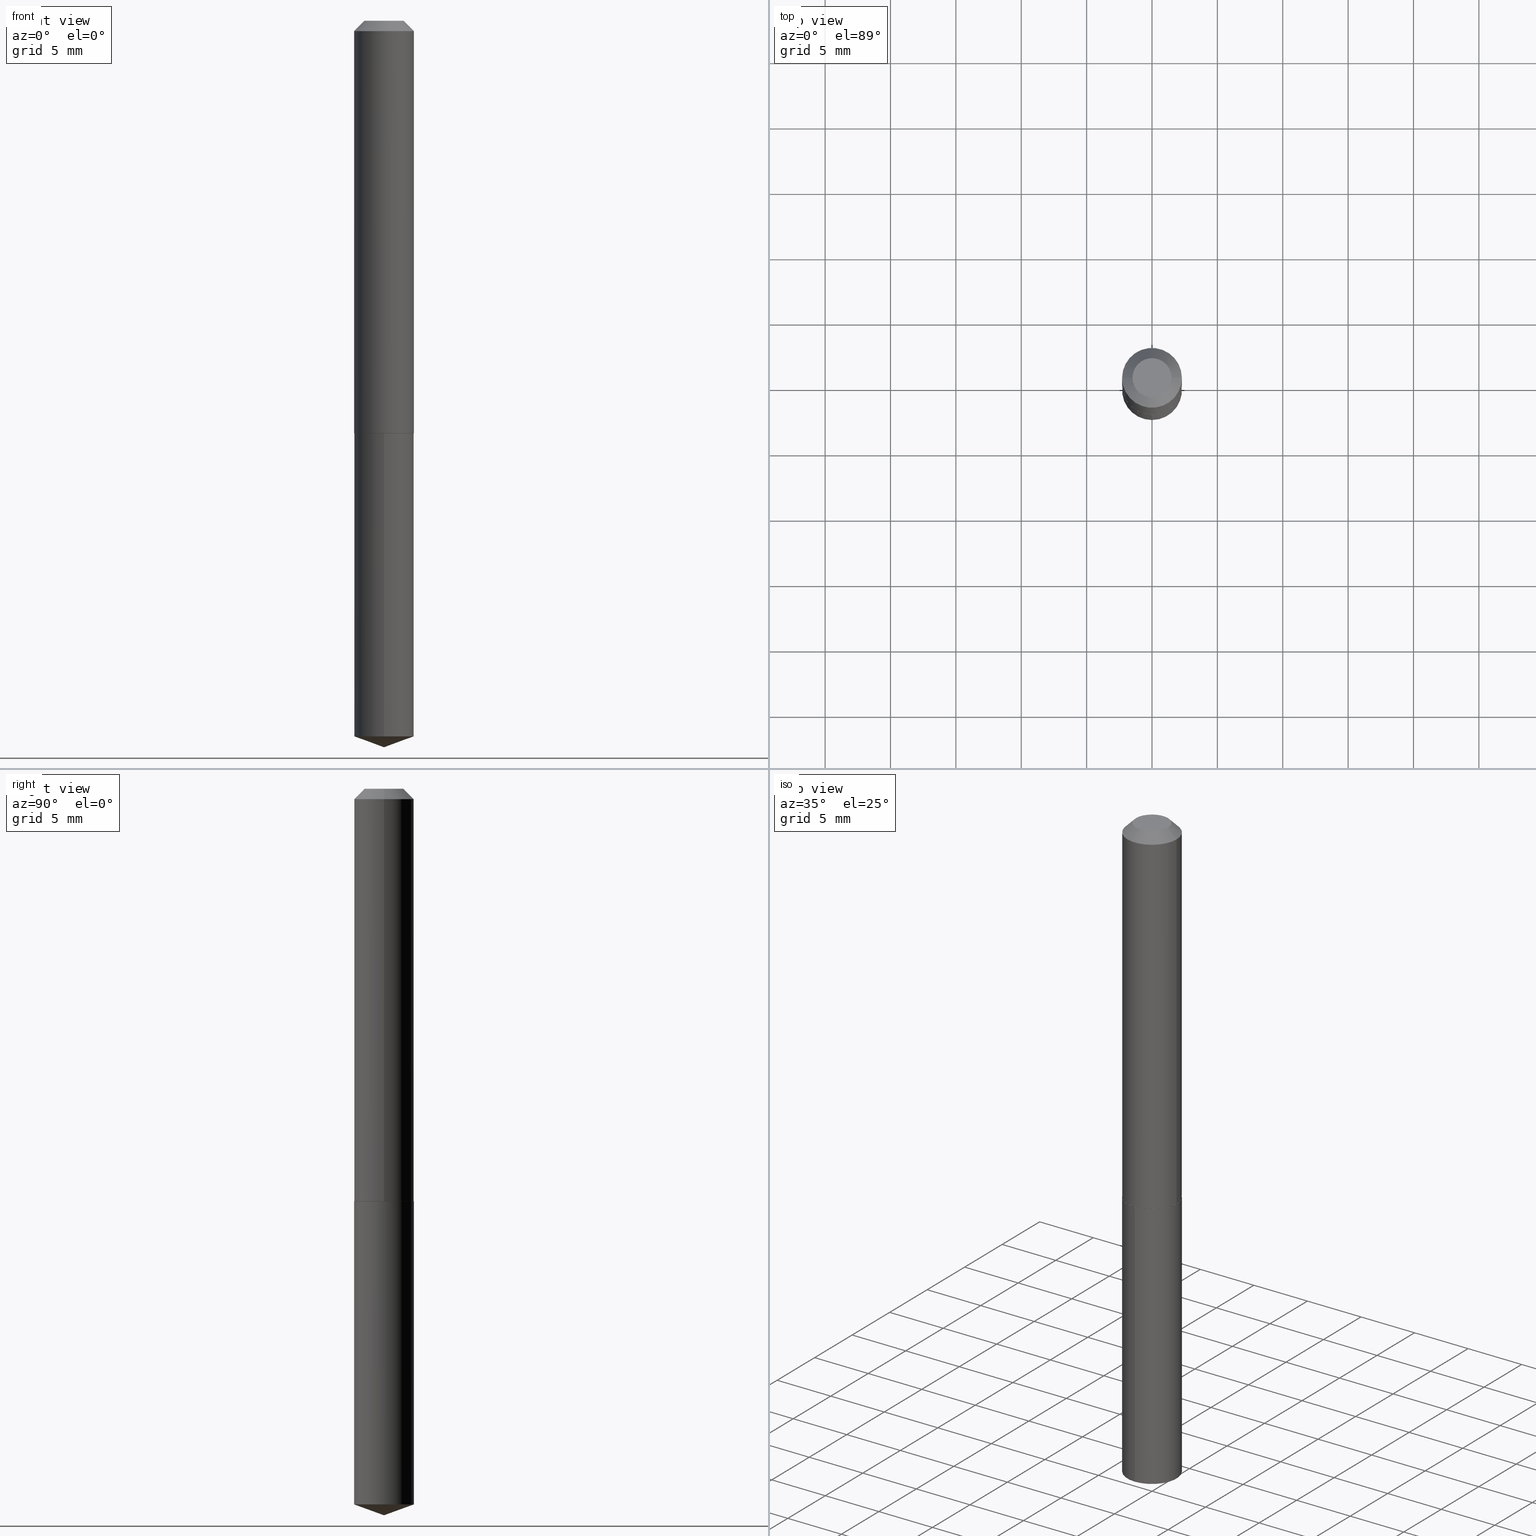
[diagram: canonical four-view strip — front | top / right | iso, engineering-drawing reading convention]
A machine part, canonical four-view strip (front | top / right | iso — engineering-drawing reading convention). The complete STEP part file that produces these views, byte-faithful:
ISO-10303-21;
HEADER;
FILE_DESCRIPTION (( 'STEP AP203' ),
    '1' );
FILE_NAME ('56015.STEP',
    '2024-04-22T19:42:29',
    ( '' ),
    ( '' ),
    'SwSTEP 2.0',
    'SolidWorks 2023',
    '' );
FILE_SCHEMA (( 'CONFIG_CONTROL_DESIGN' ));
ENDSEC;

DATA;
#1 = AXIS2_PLACEMENT_3D ( 'NONE', #164, #283, #17 ) ;
#2 = AXIS2_PLACEMENT_3D ( 'NONE', #354, #201, #176 ) ;
#3 = CARTESIAN_POINT ( 'NONE',  ( 2.994835545909338206E-48, -4.275831445896990567E-34, -1.224646799147357958E-19 ) ) ;
#4 = DIRECTION ( 'NONE',  ( 2.445564806942937386E-29, -3.491343860293950620E-15, -1.000000000000000000 ) ) ;
#5 = CARTESIAN_POINT ( 'NONE',  ( 0.08999999999999999667, -7.375754328306130652E-16, -0.03125000000000020817 ) ) ;
#6 = PERSON_AND_ORGANIZATION ( #262, #217 ) ;
#7 = EDGE_LOOP ( 'NONE', ( #226, #366, #43, #367 ) ) ;
#8 = MANIFOLD_SOLID_BREP ( 'Body-Move/Copy2[1]', #146 ) ;
#9 = EDGE_CURVE ( 'NONE', #371, #142, #71, .T. ) ;
#10 = CARTESIAN_POINT ( 'NONE',  ( 3.037272257281940407E-29, -4.336419822843187625E-15, -1.242000000000000215 ) ) ;
#11 = AXIS2_PLACEMENT_3D ( 'NONE', #107, #116, #170 ) ;
#12 = CC_DESIGN_PERSON_AND_ORGANIZATION_ASSIGNMENT ( #6, #326, ( #251 ) ) ;
#13 = ORIENTED_EDGE ( 'NONE', *, *, #9, .T. ) ;
#14 = FACE_OUTER_BOUND ( 'NONE', #207, .T. ) ;
#15 = DIRECTION ( 'NONE',  ( -2.445564806942937386E-29, 3.491343860293950620E-15, 1.000000000000000000 ) ) ;
#16 = CARTESIAN_POINT ( 'NONE',  ( 5.349434453304541823E-29, -7.637656328587767219E-15, -2.187500000000000000 ) ) ;
#17 = DIRECTION ( 'NONE',  ( -6.982962677686267499E-15, -1.000000000000000000, 3.475157955500694970E-15 ) ) ;
#18 = CARTESIAN_POINT ( 'NONE',  ( -0.09000000000000006606, 6.394884621840906367E-16, -4.427041581229418623E-30 ) ) ;
#19 = PRODUCT_DEFINITION_SHAPE ( 'NONE', 'NONE',  #251 ) ;
#20 = VERTEX_POINT ( 'NONE', #245 ) ;
#21 = VECTOR ( 'NONE', #204, 39.37007874015748143 ) ;
#22 = AXIS2_PLACEMENT_3D ( 'NONE', #110, #51, #282 ) ;
#23 = MANIFOLD_SOLID_BREP ( 'Body-Move/Copy2[2]', #323 ) ;
#24 = ORIENTED_EDGE ( 'NONE', *, *, #309, .F. ) ;
#25 = CARTESIAN_POINT ( 'NONE',  ( -6.284666409917335934E-16, -0.09000000000000432654, -1.242499999999999938 ) ) ;
#26 = DIRECTION ( 'NONE',  ( -6.982962677686265133E-15, -1.000000000000000000, 3.035386659626959132E-15 ) ) ;
#27 = ORIENTED_EDGE ( 'NONE', *, *, #153, .T. ) ;
#28 = LINE ( 'NONE', #353, #255 ) ;
#29 = EDGE_CURVE ( 'NONE', #142, #371, #361, .T. ) ;
#30 = ORIENTED_EDGE ( 'NONE', *, *, #153, .F. ) ;
#31 = PERSON_AND_ORGANIZATION_ROLE ( 'creator' ) ;
#32 = DIRECTION ( 'NONE',  ( 0.000000000000000000, 0.000000000000000000, 1.000000000000000000 ) ) ;
#33 =( LENGTH_UNIT ( ) NAMED_UNIT ( * ) SI_UNIT ( $, .METRE. ) );
#34 = DIRECTION ( 'NONE',  ( 1.000000000000000000, -6.982962677686266711E-15, 0.000000000000000000 ) ) ;
#35 = DATE_AND_TIME ( #304, #316 ) ;
#36 = ORIENTED_EDGE ( 'NONE', *, *, #149, .T. ) ;
#37 = VECTOR ( 'NONE', #341, 39.37007874015748143 ) ;
#38 = PERSON_AND_ORGANIZATION ( #262, #217 ) ;
#39 = VECTOR ( 'NONE', #127, 39.37007874015748854 ) ;
#40 = CARTESIAN_POINT ( 'NONE',  ( 3.038494991685032087E-29, -4.338165563512608340E-15, -1.242499999999999938 ) ) ;
#41 = ORIENTED_EDGE ( 'NONE', *, *, #9, .F. ) ;
#42 = CARTESIAN_POINT ( 'NONE',  ( 7.642090019328602662E-31, -1.091087918388490267E-16, -0.03125000000000020817 ) ) ;
#43 = ORIENTED_EDGE ( 'NONE', *, *, #78, .T. ) ;
#44 = DIRECTION ( 'NONE',  ( -6.982962677686265133E-15, -1.000000000000000000, 3.035386659626959132E-15 ) ) ;
#45 = EDGE_LOOP ( 'NONE', ( #178, #273, #246 ) ) ;
#46 = ORIENTED_EDGE ( 'NONE', *, *, #301, .T. ) ;
#47 = ORIENTED_EDGE ( 'NONE', *, *, #144, .F. ) ;
#48 = APPLICATION_CONTEXT ( 'configuration controlled 3d designs of mechanical parts and assemblies' ) ;
#49 = PLANE ( 'NONE',  #132 ) ;
#50 = DATE_AND_TIME ( #296, #80 ) ;
#51 = DIRECTION ( 'NONE',  ( -2.445468806185136597E-29, 3.491481338843145583E-15, 1.000000000000000000 ) ) ;
#52 = ORIENTED_EDGE ( 'NONE', *, *, #78, .F. ) ;
#53 = AXIS2_PLACEMENT_3D ( 'NONE', #129, #308, #122 ) ;
#54 = DIRECTION ( 'NONE',  ( -1.000000000000000000, 6.982962677686265922E-15, -4.876176775795935793E-29 ) ) ;
#55 = PERSON_AND_ORGANIZATION ( #262, #217 ) ;
#56 = ORIENTED_EDGE ( 'NONE', *, *, #295, .F. ) ;
#57 = ORIENTED_EDGE ( 'NONE', *, *, #92, .T. ) ;
#58 = DIRECTION ( 'NONE',  ( -2.445468806185136597E-29, 3.491481338843145583E-15, 1.000000000000000000 ) ) ;
#59 = APPROVAL_DATE_TIME ( #50, #87 ) ;
#60 = DIRECTION ( 'NONE',  ( 1.000000000000000000, -6.982962677686266711E-15, 0.000000000000000000 ) ) ;
#61 = ADVANCED_FACE ( 'NONE', ( #270 ), #238, .T. ) ;
#62 = PERSON_AND_ORGANIZATION_ROLE ( 'design_owner' ) ;
#63 = VECTOR ( 'NONE', #225, 39.37007874015748143 ) ;
#64 = AXIS2_PLACEMENT_3D ( 'NONE', #42, #280, #60 ) ;
#65 = DIRECTION ( 'NONE',  ( -6.982962677686265133E-15, -1.000000000000000000, 3.035386659626959132E-15 ) ) ;
#66 = DATE_TIME_ROLE ( 'classification_date' ) ;
#67 = EDGE_CURVE ( 'NONE', #268, #20, #344, .T. ) ;
#68 = EDGE_LOOP ( 'NONE', ( #77, #36 ) ) ;
#69 = PERSON_AND_ORGANIZATION_ROLE ( 'classification_officer' ) ;
#70 = DIRECTION ( 'NONE',  ( 1.000000000000000000, -6.982962677686265922E-15, 0.000000000000000000 ) ) ;
#71 = CIRCLE ( 'NONE', #152, 0.08950000000000016276 ) ;
#72 =( GEOMETRIC_REPRESENTATION_CONTEXT ( 3 ) GLOBAL_UNCERTAINTY_ASSIGNED_CONTEXT ( ( #272 ) ) GLOBAL_UNIT_ASSIGNED_CONTEXT ( ( #358, #234, #237 ) ) REPRESENTATION_CONTEXT ( 'NONE', 'WORKASPACE' ) );
#73 = VERTEX_POINT ( 'NONE', #220 ) ;
#74 = DIRECTION ( 'NONE',  ( -2.445564806942937386E-29, 3.491343860293951015E-15, 1.000000000000000000 ) ) ;
#75 = APPROVAL_STATUS ( 'not_yet_approved' ) ;
#76 = CYLINDRICAL_SURFACE ( 'NONE', #279, 0.08999999999999999667 ) ;
#77 = ORIENTED_EDGE ( 'NONE', *, *, #82, .T. ) ;
#78 = EDGE_CURVE ( 'NONE', #20, #223, #306, .T. ) ;
#79 = COORDINATED_UNIVERSAL_TIME_OFFSET ( 5, 0, .BEHIND. ) ;
#80 = LOCAL_TIME ( 15, 42, 29.00000000000000000, #322 ) ;
#81 = DIRECTION ( 'NONE',  ( -2.445564806942937386E-29, 3.491343860293951015E-15, 1.000000000000000000 ) ) ;
#82 = EDGE_CURVE ( 'NONE', #223, #376, #242, .T. ) ;
#83 = CARTESIAN_POINT ( 'NONE',  ( 3.038494991685032647E-29, -4.338165563512609129E-15, -1.242500000000000160 ) ) ;
#84 = VERTEX_POINT ( 'NONE', #5 ) ;
#85 = CIRCLE ( 'NONE', #297, 0.09000000000000013545 ) ;
#86 = AXIS2_PLACEMENT_3D ( 'NONE', #374, #100, #224 ) ;
#87 = APPROVAL ( #300, 'UNSPECIFIED' ) ;
#88 = COORDINATED_UNIVERSAL_TIME_OFFSET ( 5, 0, .BEHIND. ) ;
#89 = DIRECTION ( 'NONE',  ( -0.7071067811865451302, 2.468850131082231817E-15, -0.7071067811865499042 ) ) ;
#90 = DIRECTION ( 'NONE',  ( 6.982962677686265922E-15, 1.000000000000000000, -3.491343860293950620E-15 ) ) ;
#91 = CALENDAR_DATE ( 2024, 22, 4 ) ;
#92 = EDGE_CURVE ( 'NONE', #73, #184, #85, .T. ) ;
#93 = SECURITY_CLASSIFICATION_LEVEL ( 'unclassified' ) ;
#94 = DIRECTION ( 'NONE',  ( -2.445468806185136597E-29, 3.491481338843145583E-15, 1.000000000000000000 ) ) ;
#95 = ORIENTED_EDGE ( 'NONE', *, *, #256, .T. ) ;
#96 = DIRECTION ( 'NONE',  ( -6.982962677686265133E-15, -1.000000000000000000, 3.035386659626959132E-15 ) ) ;
#97 = CARTESIAN_POINT ( 'NONE',  ( -0.08950000000000016276, -3.699580587833207302E-15, -1.242499999999999938 ) ) ;
#98 = APPROVAL_PERSON_ORGANIZATION ( #38, #232, #274 ) ;
#99 = FACE_OUTER_BOUND ( 'NONE', #45, .T. ) ;
#100 = DIRECTION ( 'NONE',  ( -2.445468806185136597E-29, 3.491481338843145583E-15, 1.000000000000000000 ) ) ;
#101 = CARTESIAN_POINT ( 'NONE',  ( 3.038494991685032647E-29, -4.338165563512609129E-15, -1.242500000000000160 ) ) ;
#102 = ORIENTED_EDGE ( 'NONE', *, *, #92, .F. ) ;
#103 = DIRECTION ( 'NONE',  ( -2.445564806942937386E-29, 3.491343860293951015E-15, 1.000000000000000000 ) ) ;
#104 = CARTESIAN_POINT ( 'NONE',  ( 0.05874999999999999667, -5.648039345036820564E-16, -1.224646799113270924E-19 ) ) ;
#105 = ORIENTED_EDGE ( 'NONE', *, *, #337, .F. ) ;
#106 = EDGE_LOOP ( 'NONE', ( #95, #114, #284, #52 ) ) ;
#107 = CARTESIAN_POINT ( 'NONE',  ( 5.269443582633451570E-29, -7.523118439644238863E-15, -2.154742678916042209 ) ) ;
#108 = ADVANCED_FACE ( 'NONE', ( #214 ), #49, .F. ) ;
#109 = DIRECTION ( 'NONE',  ( -6.982962677686265133E-15, -1.000000000000000000, 3.035386659626959132E-15 ) ) ;
#110 = CARTESIAN_POINT ( 'NONE',  ( 0.000000000000000000, 0.000000000000000000, 0.000000000000000000 ) ) ;
#111 = CARTESIAN_POINT ( 'NONE',  ( 7.642090019328602662E-31, -1.091087918388490267E-16, -0.03125000000000020817 ) ) ;
#112 = CARTESIAN_POINT ( 'NONE',  ( 3.038494991685032647E-29, -4.338165563512609129E-15, -1.242500000000000160 ) ) ;
#113 = AXIS2_PLACEMENT_3D ( 'NONE', #101, #74, #65 ) ;
#114 = ORIENTED_EDGE ( 'NONE', *, *, #218, .T. ) ;
#115 = AXIS2_PLACEMENT_3D ( 'NONE', #117, #4, #90 ) ;
#116 = DIRECTION ( 'NONE',  ( -2.445564806942937386E-29, 3.491343860293951015E-15, 1.000000000000000000 ) ) ;
#117 = CARTESIAN_POINT ( 'NONE',  ( 3.038494991685032647E-29, -4.338165563512609129E-15, -1.242500000000000160 ) ) ;
#118 = CC_DESIGN_PERSON_AND_ORGANIZATION_ASSIGNMENT ( #161, #362, ( #191 ) ) ;
#119 = AXIS2_PLACEMENT_3D ( 'NONE', #111, #135, #252 ) ;
#120 = AXIS2_PLACEMENT_3D ( 'NONE', #298, #32, #172 ) ;
#121 = LENGTH_MEASURE_WITH_UNIT ( LENGTH_MEASURE( 0.02539999999999999897 ), #33 );
#122 = DIRECTION ( 'NONE',  ( 1.000000000000000000, -6.982962677686266711E-15, 4.876176775795935793E-29 ) ) ;
#123 = FACE_OUTER_BOUND ( 'NONE', #68, .T. ) ;
#124 = ORIENTED_EDGE ( 'NONE', *, *, #256, .F. ) ;
#125 = CC_DESIGN_DATE_AND_TIME_ASSIGNMENT ( #373, #66, ( #330 ) ) ;
#126 = VERTEX_POINT ( 'NONE', #261 ) ;
#127 = DIRECTION ( 'NONE',  ( -6.561838499445207162E-15, -0.9396926207859082059, 0.3420201433256689350 ) ) ;
#128 = CARTESIAN_POINT ( 'NONE',  ( 5.269443582633451570E-29, -7.523118439644238863E-15, -2.154742678916042209 ) ) ;
#129 = CARTESIAN_POINT ( 'NONE',  ( 0.000000000000000000, 0.000000000000000000, 0.000000000000000000 ) ) ;
#130 = EDGE_CURVE ( 'NONE', #319, #289, #315, .T. ) ;
#131 = LINE ( 'NONE', #16, #39 ) ;
#132 = AXIS2_PLACEMENT_3D ( 'NONE', #324, #328, #54 ) ;
#133 = CC_DESIGN_APPROVAL ( #232, ( #330 ) ) ;
#134 = AXIS2_PLACEMENT_3D ( 'NONE', #247, #94, #271 ) ;
#135 = DIRECTION ( 'NONE',  ( 2.445468806185136597E-29, -3.491481338843145583E-15, -1.000000000000000000 ) ) ;
#136 = EDGE_CURVE ( 'NONE', #142, #73, #158, .T. ) ;
#137 = FACE_OUTER_BOUND ( 'NONE', #303, .T. ) ;
#138 = CIRCLE ( 'NONE', #113, 0.08999999999999999667 ) ;
#139 = CC_DESIGN_APPROVAL ( #189, ( #251 ) ) ;
#140 = ORIENTED_EDGE ( 'NONE', *, *, #288, .T. ) ;
#141 = CARTESIAN_POINT ( 'NONE',  ( 0.09000000000000013545, -4.964886463834952576E-15, -1.242000000000000215 ) ) ;
#142 = VERTEX_POINT ( 'NONE', #97 ) ;
#143 = PLANE ( 'NONE',  #173 ) ;
#144 = EDGE_CURVE ( 'NONE', #371, #184, #222, .T. ) ;
#145 = ORIENTED_EDGE ( 'NONE', *, *, #203, .F. ) ;
#146 = CLOSED_SHELL ( 'NONE', ( #343, #213, #325, #196, #377 ) ) ;
#147 = PERSON_AND_ORGANIZATION ( #262, #217 ) ;
#148 = EDGE_LOOP ( 'NONE', ( #13, #258, #105, #47 ) ) ;
#149 = EDGE_CURVE ( 'NONE', #376, #223, #138, .T. ) ;
#150 = APPLICATION_PROTOCOL_DEFINITION ( 'international standard', 'config_control_design', 1994, #241 ) ;
#151 = DIRECTION ( 'NONE',  ( 6.676917655467975229E-15, 0.9396926207859106484, 0.3420201433256624401 ) ) ;
#152 = AXIS2_PLACEMENT_3D ( 'NONE', #40, #276, #197 ) ;
#153 = EDGE_CURVE ( 'NONE', #319, #84, #192, .T. ) ;
#154 = ORIENTED_EDGE ( 'NONE', *, *, #136, .F. ) ;
#155 = AXIS2_PLACEMENT_3D ( 'NONE', #275, #162, #70 ) ;
#156 = APPROVAL_DATE_TIME ( #35, #232 ) ;
#157 = CC_DESIGN_PERSON_AND_ORGANIZATION_ASSIGNMENT ( #259, #31, ( #191 ) ) ;
#158 = LINE ( 'NONE', #372, #63 ) ;
#159 = CALENDAR_DATE ( 2024, 22, 4 ) ;
#160 = AXIS2_PLACEMENT_3D ( 'NONE', #318, #351, #321 ) ;
#161 = PERSON_AND_ORGANIZATION ( #262, #217 ) ;
#162 = DIRECTION ( 'NONE',  ( -2.445468806185136597E-29, 3.491481338843145583E-15, 1.000000000000000000 ) ) ;
#163 = PRODUCT_RELATED_PRODUCT_CATEGORY ( 'detail', '', ( #171 ) ) ;
#164 = CARTESIAN_POINT ( 'NONE',  ( -9.093252527925537431E-28, 1.298169971772478319E-13, 37.18257874015748143 ) ) ;
#165 = EDGE_LOOP ( 'NONE', ( #385, #347, #56, #219 ) ) ;
#166 = CONICAL_SURFACE ( 'NONE', #1, 108.1684023407342465, 1.221730476396033938 ) ;
#167 = LOCAL_TIME ( 15, 42, 29.00000000000000000, #332 ) ;
#168 = EDGE_LOOP ( 'NONE', ( #154, #188, #257, #102 ) ) ;
#169 = DIRECTION ( 'NONE',  ( -2.445564806942937386E-29, 3.491343860293951015E-15, 1.000000000000000000 ) ) ;
#170 = DIRECTION ( 'NONE',  ( -6.982962677686265133E-15, -1.000000000000000000, 3.035386659626959132E-15 ) ) ;
#171 = PRODUCT ( '56015', '56015', '', ( #212 ) ) ;
#172 = DIRECTION ( 'NONE',  ( 1.000000000000000000, 0.000000000000000000, 0.000000000000000000 ) ) ;
#173 = AXIS2_PLACEMENT_3D ( 'NONE', #317, #254, #287 ) ;
#174 = DIMENSIONAL_EXPONENTS ( 1.000000000000000000, 0.000000000000000000, 0.000000000000000000, 0.000000000000000000, 0.000000000000000000, 0.000000000000000000, 0.000000000000000000 ) ;
#175 = AXIS2_PLACEMENT_3D ( 'NONE', #227, #365, #307 ) ;
#176 = DIRECTION ( 'NONE',  ( 1.000000000000000000, -6.982962677686263555E-15, 0.000000000000000000 ) ) ;
#177 = ADVANCED_FACE ( 'NONE', ( #346 ), #143, .F. ) ;
#178 = ORIENTED_EDGE ( 'NONE', *, *, #369, .F. ) ;
#179 = DESIGN_CONTEXT ( 'detailed design', #48, 'design' ) ;
#180 = APPROVAL_ROLE ( '' ) ;
#181 = LINE ( 'NONE', #267, #350 ) ;
#182 = COORDINATED_UNIVERSAL_TIME_OFFSET ( 5, 0, .BEHIND. ) ;
#183 = DATE_TIME_ROLE ( 'creation_date' ) ;
#184 = VERTEX_POINT ( 'NONE', #141 ) ;
#185 = EDGE_LOOP ( 'NONE', ( #41, #334 ) ) ;
#186 = DIRECTION ( 'NONE',  ( 1.000000000000000000, -6.982962677686263555E-15, 0.000000000000000000 ) ) ;
#187 = ORIENTED_EDGE ( 'NONE', *, *, #369, .T. ) ;
#188 = ORIENTED_EDGE ( 'NONE', *, *, #29, .T. ) ;
#189 = APPROVAL ( #327, 'UNSPECIFIED' ) ;
#190 = AXIS2_PLACEMENT_3D ( 'NONE', #10, #364, #186 ) ;
#191 = PRODUCT_DEFINITION_FORMATION_WITH_SPECIFIED_SOURCE ( 'ANY', '', #171, .NOT_KNOWN. ) ;
#192 = LINE ( 'NONE', #310, #21 ) ;
#193 = ORIENTED_EDGE ( 'NONE', *, *, #130, .T. ) ;
#194 = CARTESIAN_POINT ( 'NONE',  ( 0.09000000000000006606, -6.284666409917644575E-16, 4.388559098216345437E-30 ) ) ;
#195 = LINE ( 'NONE', #18, #37 ) ;
#196 = ADVANCED_FACE ( 'NONE', ( #200 ), #383, .T. ) ;
#197 = DIRECTION ( 'NONE',  ( 1.000000000000000000, -6.982962677686265922E-15, 0.000000000000000000 ) ) ;
#198 = DIRECTION ( 'NONE',  ( -2.445468806185136877E-29, 3.491481338843145188E-15, 1.000000000000000000 ) ) ;
#199 = VECTOR ( 'NONE', #15, 39.37007874015748143 ) ;
#200 = FACE_OUTER_BOUND ( 'NONE', #7, .T. ) ;
#201 = DIRECTION ( 'NONE',  ( -2.445468806185136597E-29, 3.491481338843145583E-15, 1.000000000000000000 ) ) ;
#202 = LINE ( 'NONE', #313, #335 ) ;
#203 = EDGE_CURVE ( 'NONE', #73, #126, #195, .T. ) ;
#204 = DIRECTION ( 'NONE',  ( 0.7071067811865451302, -7.319954787623248157E-15, -0.7071067811865499042 ) ) ;
#205 = CIRCLE ( 'NONE', #134, 0.09000000000000013545 ) ;
#206 = FACE_OUTER_BOUND ( 'NONE', #352, .T. ) ;
#207 = EDGE_LOOP ( 'NONE', ( #30, #302, #269, #46 ) ) ;
#208 = APPROVAL_ROLE ( '' ) ;
#209 = ADVANCED_FACE ( 'NONE', ( #14 ), #285, .T. ) ;
#210 = APPLICATION_PROTOCOL_DEFINITION ( 'international standard', 'config_control_design', 1994, #48 ) ;
#211 = CIRCLE ( 'NONE', #299, 0.08999999999999999667 ) ;
#212 = MECHANICAL_CONTEXT ( 'NONE', #241, 'mechanical' ) ;
#213 = ADVANCED_FACE ( 'NONE', ( #378 ), #166, .T. ) ;
#214 = FACE_OUTER_BOUND ( 'NONE', #231, .T. ) ;
#215 = CALENDAR_DATE ( 2024, 22, 4 ) ;
#216 = CARTESIAN_POINT ( 'NONE',  ( 7.642090019328602662E-31, -1.091087918388490267E-16, -0.03125000000000020817 ) ) ;
#217 = ORGANIZATION ( 'UNSPECIFIED', 'UNSPECIFIED', '' ) ;
#218 = EDGE_CURVE ( 'NONE', #268, #376, #202, .T. ) ;
#219 = ORIENTED_EDGE ( 'NONE', *, *, #264, .F. ) ;
#220 = CARTESIAN_POINT ( 'NONE',  ( -0.09000000000000013545, -3.696931360659096890E-15, -1.242000000000000215 ) ) ;
#221 = CONICAL_SURFACE ( 'NONE', #160, 0.08999999999999999667, 0.7853981633974449483 ) ;
#222 = LINE ( 'NONE', #249, #278 ) ;
#223 = VERTEX_POINT ( 'NONE', #389 ) ;
#224 = DIRECTION ( 'NONE',  ( 1.000000000000000000, -6.982962677686267499E-15, 4.876179797471253707E-29 ) ) ;
#225 = DIRECTION ( 'NONE',  ( -0.7071067811867889352, 7.493145998871226640E-15, 0.7071067811863060992 ) ) ;
#226 = ORIENTED_EDGE ( 'NONE', *, *, #218, .F. ) ;
#227 = CARTESIAN_POINT ( 'NONE',  ( -9.093252527925537431E-28, 1.298169971772478319E-13, 37.18257874015748143 ) ) ;
#228 = CC_DESIGN_PERSON_AND_ORGANIZATION_ASSIGNMENT ( #342, #69, ( #330 ) ) ;
#229 = DIRECTION ( 'NONE',  ( -2.445564806942937386E-29, 3.491343860293950620E-15, 1.000000000000000000 ) ) ;
#230 = CONICAL_SURFACE ( 'NONE', #2, 0.09000000000000013545, 0.7853981633977896726 ) ;
#231 = EDGE_LOOP ( 'NONE', ( #140, #193 ) ) ;
#232 = APPROVAL ( #75, 'UNSPECIFIED' ) ;
#233 = FACE_OUTER_BOUND ( 'NONE', #168, .T. ) ;
#234 =( NAMED_UNIT ( * ) PLANE_ANGLE_UNIT ( ) SI_UNIT ( $, .RADIAN. ) );
#235 = ADVANCED_BREP_SHAPE_REPRESENTATION ( '56015', ( #8, #23, #120 ), #72 ) ;
#236 = DIRECTION ( 'NONE',  ( 1.000000000000000000, -6.982962677686263555E-15, 0.000000000000000000 ) ) ;
#237 =( NAMED_UNIT ( * ) SI_UNIT ( $, .STERADIAN. ) SOLID_ANGLE_UNIT ( ) );
#238 = CONICAL_SURFACE ( 'NONE', #190, 0.09000000000000013545, 0.7853981633977896726 ) ;
#239 = CIRCLE ( 'NONE', #11, 0.08999999999999999667 ) ;
#240 = ADVANCED_FACE ( 'NONE', ( #305 ), #333, .T. ) ;
#241 = APPLICATION_CONTEXT ( 'configuration controlled 3d designs of mechanical parts and assemblies' ) ;
#242 = CIRCLE ( 'NONE', #290, 0.08999999999999999667 ) ;
#243 = APPROVAL_PERSON_ORGANIZATION ( #292, #189, #180 ) ;
#244 = ADVANCED_FACE ( 'NONE', ( #137 ), #381, .T. ) ;
#245 = CARTESIAN_POINT ( 'NONE',  ( -6.284666409917110122E-16, -0.09000000000000749067, -2.154742678916041765 ) ) ;
#246 = ORIENTED_EDGE ( 'NONE', *, *, #67, .F. ) ;
#247 = CARTESIAN_POINT ( 'NONE',  ( 3.037272257281940407E-29, -4.336419822843187625E-15, -1.242000000000000215 ) ) ;
#248 = CIRCLE ( 'NONE', #64, 0.08999999999999999667 ) ;
#249 = CARTESIAN_POINT ( 'NONE',  ( 0.09000000000000013545, -4.964886463834952576E-15, -1.242000000000000215 ) ) ;
#250 = ORIENTED_EDGE ( 'NONE', *, *, #130, .F. ) ;
#251 = PRODUCT_DEFINITION ( 'UNKNOWN', '', #191, #179 ) ;
#252 = DIRECTION ( 'NONE',  ( -1.000000000000000000, 6.982962677686266711E-15, 0.000000000000000000 ) ) ;
#253 = CARTESIAN_POINT ( 'NONE',  ( 3.038494991685032647E-29, -4.338165563512609129E-15, -1.242500000000000160 ) ) ;
#254 = DIRECTION ( 'NONE',  ( -2.438088387897960049E-29, 3.491481338843145188E-15, 1.000000000000000000 ) ) ;
#255 = VECTOR ( 'NONE', #151, 39.37007874015748143 ) ;
#256 = EDGE_CURVE ( 'NONE', #20, #268, #239, .T. ) ;
#257 = ORIENTED_EDGE ( 'NONE', *, *, #144, .T. ) ;
#258 = ORIENTED_EDGE ( 'NONE', *, *, #136, .T. ) ;
#259 = PERSON_AND_ORGANIZATION ( #262, #217 ) ;
#260 = EDGE_LOOP ( 'NONE', ( #24, #187, #124 ) ) ;
#261 = CARTESIAN_POINT ( 'NONE',  ( -0.08999999999999999667, -1.583275845156927233E-15, -0.03125000000000020817 ) ) ;
#262 = PERSON ( 'UNSPECIFIED', 'UNSPECIFIED', 'UNSPECIFIED', ('UNSPECIFIED'), ('UNSPECIFIED'), ('UNSPECIFIED') ) ;
#263 = PLANE ( 'NONE',  #115 ) ;
#264 = EDGE_CURVE ( 'NONE', #184, #84, #387, .T. ) ;
#265 = CIRCLE ( 'NONE', #86, 0.05874999999999999667 ) ;
#266 = APPROVAL_DATE_TIME ( #294, #189 ) ;
#267 = CARTESIAN_POINT ( 'NONE',  ( -0.08999999999999999667, 5.193578491529149625E-16, -0.03125000000000020817 ) ) ;
#268 = VERTEX_POINT ( 'NONE', #345 ) ;
#269 = ORIENTED_EDGE ( 'NONE', *, *, #384, .T. ) ;
#270 = FACE_OUTER_BOUND ( 'NONE', #148, .T. ) ;
#271 = DIRECTION ( 'NONE',  ( 1.000000000000000000, -6.982962677686263555E-15, 0.000000000000000000 ) ) ;
#272 = UNCERTAINTY_MEASURE_WITH_UNIT (LENGTH_MEASURE( 1.000000000000000082E-05 ), #358, 'distance_accuracy_value', 'NONE');
#273 = ORIENTED_EDGE ( 'NONE', *, *, #309, .T. ) ;
#274 = APPROVAL_ROLE ( '' ) ;
#275 = CARTESIAN_POINT ( 'NONE',  ( 3.038494991685032087E-29, -4.338165563512608340E-15, -1.242499999999999938 ) ) ;
#276 = DIRECTION ( 'NONE',  ( -2.445468806185136597E-29, 3.491481338843145583E-15, 1.000000000000000000 ) ) ;
#277 = ADVANCED_FACE ( 'NONE', ( #233 ), #230, .T. ) ;
#278 = VECTOR ( 'NONE', #338, 39.37007874015748143 ) ;
#279 = AXIS2_PLACEMENT_3D ( 'NONE', #83, #169, #26 ) ;
#280 = DIRECTION ( 'NONE',  ( -2.445468806185136597E-29, 3.491481338843145583E-15, 1.000000000000000000 ) ) ;
#281 = ORIENTED_EDGE ( 'NONE', *, *, #264, .T. ) ;
#282 = DIRECTION ( 'NONE',  ( 1.000000000000000000, -6.982962677686266711E-15, 4.876176775795935793E-29 ) ) ;
#283 = DIRECTION ( 'NONE',  ( -2.445564806942937386E-29, 3.491343860293951015E-15, 1.000000000000000000 ) ) ;
#284 = ORIENTED_EDGE ( 'NONE', *, *, #82, .F. ) ;
#285 = CONICAL_SURFACE ( 'NONE', #119, 0.08999999999999999667, 0.7853981633974449483 ) ;
#286 = APPROVAL_PERSON_ORGANIZATION ( #147, #87, #208 ) ;
#287 = DIRECTION ( 'NONE',  ( 1.000000000000000000, -6.982962677686265922E-15, 4.876176775795935793E-29 ) ) ;
#288 = EDGE_CURVE ( 'NONE', #289, #319, #265, .T. ) ;
#289 = VERTEX_POINT ( 'NONE', #311 ) ;
#290 = AXIS2_PLACEMENT_3D ( 'NONE', #253, #103, #109 ) ;
#291 = LOCAL_TIME ( 15, 42, 29.00000000000000000, #182 ) ;
#292 = PERSON_AND_ORGANIZATION ( #262, #217 ) ;
#293 = ORIENTED_EDGE ( 'NONE', *, *, #301, .F. ) ;
#294 = DATE_AND_TIME ( #91, #291 ) ;
#295 = EDGE_CURVE ( 'NONE', #84, #126, #248, .T. ) ;
#296 = CALENDAR_DATE ( 2024, 22, 4 ) ;
#297 = AXIS2_PLACEMENT_3D ( 'NONE', #360, #58, #236 ) ;
#298 = CARTESIAN_POINT ( 'NONE',  ( 0.000000000000000000, 0.000000000000000000, 0.000000000000000000 ) ) ;
#299 = AXIS2_PLACEMENT_3D ( 'NONE', #216, #331, #34 ) ;
#300 = APPROVAL_STATUS ( 'not_yet_approved' ) ;
#301 = EDGE_CURVE ( 'NONE', #126, #84, #211, .T. ) ;
#302 = ORIENTED_EDGE ( 'NONE', *, *, #288, .F. ) ;
#303 = EDGE_LOOP ( 'NONE', ( #145, #57, #281, #293 ) ) ;
#304 = CALENDAR_DATE ( 2024, 22, 4 ) ;
#305 = FACE_OUTER_BOUND ( 'NONE', #165, .T. ) ;
#306 = LINE ( 'NONE', #25, #199 ) ;
#307 = DIRECTION ( 'NONE',  ( -6.982962677686267499E-15, -1.000000000000000000, 3.475157955500694970E-15 ) ) ;
#308 = DIRECTION ( 'NONE',  ( -2.445468806185136597E-29, 3.491481338843145583E-15, 1.000000000000000000 ) ) ;
#309 = EDGE_CURVE ( 'NONE', #314, #20, #131, .T. ) ;
#310 = CARTESIAN_POINT ( 'NONE',  ( 0.08999999999999999667, -7.265536116382867874E-16, -0.03125000000000020817 ) ) ;
#311 = CARTESIAN_POINT ( 'NONE',  ( -0.05874999999999999667, 4.648034532334915954E-16, -1.224646799177953522E-19 ) ) ;
#312 = VECTOR ( 'NONE', #198, 39.37007874015748143 ) ;
#313 = CARTESIAN_POINT ( 'NONE',  ( 6.394884621841203175E-16, 0.08999999999999565292, -1.242500000000000382 ) ) ;
#314 = VERTEX_POINT ( 'NONE', #379 ) ;
#315 = CIRCLE ( 'NONE', #348, 0.05874999999999999667 ) ;
#316 = LOCAL_TIME ( 15, 42, 29.00000000000000000, #79 ) ;
#317 = CARTESIAN_POINT ( 'NONE',  ( 5.686809827632576904E-29, -5.456279857161372198E-16, -1.242500000000000160 ) ) ;
#318 = CARTESIAN_POINT ( 'NONE',  ( 7.642090019328602662E-31, -1.091087918388490267E-16, -0.03125000000000020817 ) ) ;
#319 = VERTEX_POINT ( 'NONE', #104 ) ;
#320 = CC_DESIGN_PERSON_AND_ORGANIZATION_ASSIGNMENT ( #55, #62, ( #171 ) ) ;
#321 = DIRECTION ( 'NONE',  ( -1.000000000000000000, 6.982962677686266711E-15, 0.000000000000000000 ) ) ;
#322 = COORDINATED_UNIVERSAL_TIME_OFFSET ( 5, 0, .BEHIND. ) ;
#323 = CLOSED_SHELL ( 'NONE', ( #355, #240, #61, #177, #277, #244, #209, #108 ) ) ;
#324 = CARTESIAN_POINT ( 'NONE',  ( 1.497417772954669103E-48, -2.137915722948495283E-34, -6.123233995736789792E-20 ) ) ;
#325 = ADVANCED_FACE ( 'NONE', ( #99 ), #363, .T. ) ;
#326 = PERSON_AND_ORGANIZATION_ROLE ( 'creator' ) ;
#327 = APPROVAL_STATUS ( 'not_yet_approved' ) ;
#328 = DIRECTION ( 'NONE',  ( 2.438088387897960049E-29, -3.491481338843145188E-15, -1.000000000000000000 ) ) ;
#329 = DATE_AND_TIME ( #215, #357 ) ;
#330 = SECURITY_CLASSIFICATION ( '', '', #93 ) ;
#331 = DIRECTION ( 'NONE',  ( -2.445468806185136597E-29, 3.491481338843145583E-15, 1.000000000000000000 ) ) ;
#332 = COORDINATED_UNIVERSAL_TIME_OFFSET ( 5, 0, .BEHIND. ) ;
#333 = CYLINDRICAL_SURFACE ( 'NONE', #53, 0.09000000000000006606 ) ;
#334 = ORIENTED_EDGE ( 'NONE', *, *, #29, .F. ) ;
#335 = VECTOR ( 'NONE', #229, 39.37007874015748143 ) ;
#336 = CC_DESIGN_APPROVAL ( #87, ( #191 ) ) ;
#337 = EDGE_CURVE ( 'NONE', #184, #73, #205, .T. ) ;
#338 = DIRECTION ( 'NONE',  ( 0.7071067811867889352, -2.468850131084785360E-15, 0.7071067811863060992 ) ) ;
#339 = SHAPE_DEFINITION_REPRESENTATION ( #19, #235 ) ;
#340 = FACE_OUTER_BOUND ( 'NONE', #106, .T. ) ;
#341 = DIRECTION ( 'NONE',  ( -2.445468806185136877E-29, 3.491481338843145188E-15, 1.000000000000000000 ) ) ;
#342 = PERSON_AND_ORGANIZATION ( #262, #217 ) ;
#343 = ADVANCED_FACE ( 'NONE', ( #340 ), #76, .T. ) ;
#344 = CIRCLE ( 'NONE', #380, 0.08999999999999999667 ) ;
#345 = CARTESIAN_POINT ( 'NONE',  ( 6.394884621841425043E-16, 0.08999999999999243327, -2.154742678916042653 ) ) ;
#346 = FACE_OUTER_BOUND ( 'NONE', #185, .T. ) ;
#347 = ORIENTED_EDGE ( 'NONE', *, *, #203, .T. ) ;
#348 = AXIS2_PLACEMENT_3D ( 'NONE', #3, #368, #375 ) ;
#349 = CC_DESIGN_SECURITY_CLASSIFICATION ( #330, ( #191 ) ) ;
#350 = VECTOR ( 'NONE', #89, 39.37007874015748143 ) ;
#351 = DIRECTION ( 'NONE',  ( 2.445468806185136597E-29, -3.491481338843145583E-15, -1.000000000000000000 ) ) ;
#352 = EDGE_LOOP ( 'NONE', ( #250, #27, #382, #386 ) ) ;
#353 = CARTESIAN_POINT ( 'NONE',  ( 5.349675107093791817E-29, -7.637314694393016686E-15, -2.187500000000000000 ) ) ;
#354 = CARTESIAN_POINT ( 'NONE',  ( 3.037272257281940407E-29, -4.336419822843187625E-15, -1.242000000000000215 ) ) ;
#355 = ADVANCED_FACE ( 'NONE', ( #206 ), #221, .T. ) ;
#356 = AXIS2_PLACEMENT_3D ( 'NONE', #112, #81, #44 ) ;
#357 = LOCAL_TIME ( 15, 42, 29.00000000000000000, #88 ) ;
#358 =( CONVERSION_BASED_UNIT ( 'INCH', #121 ) LENGTH_UNIT ( ) NAMED_UNIT ( #174 ) );
#359 = CC_DESIGN_DATE_AND_TIME_ASSIGNMENT ( #329, #183, ( #251 ) ) ;
#360 = CARTESIAN_POINT ( 'NONE',  ( 3.037272257281940407E-29, -4.336419822843187625E-15, -1.242000000000000215 ) ) ;
#361 = CIRCLE ( 'NONE', #155, 0.08950000000000016276 ) ;
#362 = PERSON_AND_ORGANIZATION_ROLE ( 'design_supplier' ) ;
#363 = CONICAL_SURFACE ( 'NONE', #175, 108.1684023407342465, 1.221730476396033938 ) ;
#364 = DIRECTION ( 'NONE',  ( -2.445468806185136597E-29, 3.491481338843145583E-15, 1.000000000000000000 ) ) ;
#365 = DIRECTION ( 'NONE',  ( -2.445564806942937386E-29, 3.491343860293951015E-15, 1.000000000000000000 ) ) ;
#366 = ORIENTED_EDGE ( 'NONE', *, *, #67, .T. ) ;
#367 = ORIENTED_EDGE ( 'NONE', *, *, #149, .F. ) ;
#368 = DIRECTION ( 'NONE',  ( -2.445468806185136597E-29, 3.491481338843145583E-15, 1.000000000000000000 ) ) ;
#369 = EDGE_CURVE ( 'NONE', #314, #268, #28, .T. ) ;
#370 = DIRECTION ( 'NONE',  ( -2.445564806942937386E-29, 3.491343860293951015E-15, 1.000000000000000000 ) ) ;
#371 = VERTEX_POINT ( 'NONE', #388 ) ;
#372 = CARTESIAN_POINT ( 'NONE',  ( -0.09000000000000013545, -3.696931360659096890E-15, -1.242000000000000215 ) ) ;
#373 = DATE_AND_TIME ( #159, #167 ) ;
#374 = CARTESIAN_POINT ( 'NONE',  ( 2.994835545909338206E-48, -4.275831445896990567E-34, -1.224646799147357958E-19 ) ) ;
#375 = DIRECTION ( 'NONE',  ( 1.000000000000000000, -6.982962677686267499E-15, 4.876179797471253707E-29 ) ) ;
#376 = VERTEX_POINT ( 'NONE', #390 ) ;
#377 = ADVANCED_FACE ( 'NONE', ( #123 ), #263, .F. ) ;
#378 = FACE_OUTER_BOUND ( 'NONE', #260, .T. ) ;
#379 = CARTESIAN_POINT ( 'NONE',  ( 5.349673015187675689E-29, -7.637314694393018264E-15, -2.187500000000000000 ) ) ;
#380 = AXIS2_PLACEMENT_3D ( 'NONE', #128, #370, #96 ) ;
#381 = CYLINDRICAL_SURFACE ( 'NONE', #22, 0.09000000000000006606 ) ;
#382 = ORIENTED_EDGE ( 'NONE', *, *, #295, .T. ) ;
#383 = CYLINDRICAL_SURFACE ( 'NONE', #356, 0.08999999999999999667 ) ;
#384 = EDGE_CURVE ( 'NONE', #289, #126, #181, .T. ) ;
#385 = ORIENTED_EDGE ( 'NONE', *, *, #337, .T. ) ;
#386 = ORIENTED_EDGE ( 'NONE', *, *, #384, .F. ) ;
#387 = LINE ( 'NONE', #194, #312 ) ;
#388 = CARTESIAN_POINT ( 'NONE',  ( 0.08950000000000016276, -4.963140723165530284E-15, -1.242499999999999938 ) ) ;
#389 = CARTESIAN_POINT ( 'NONE',  ( -6.284666409917335934E-16, -0.09000000000000432654, -1.242499999999999938 ) ) ;
#390 = CARTESIAN_POINT ( 'NONE',  ( 6.394884621841428987E-16, 0.08999999999999565292, -1.242500000000000382 ) ) ;
ENDSEC;
END-ISO-10303-21;
